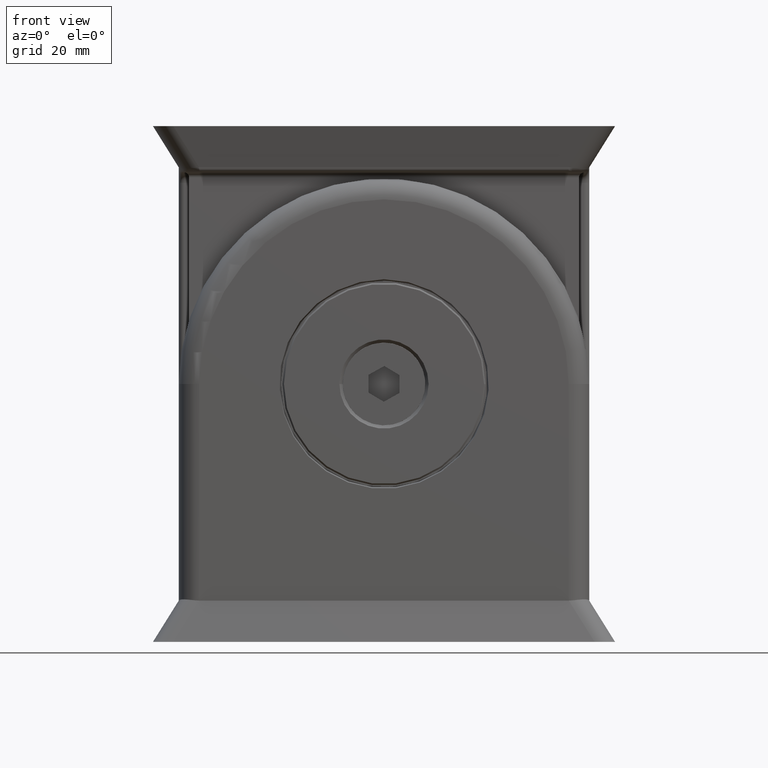
[diagram: clean part render]
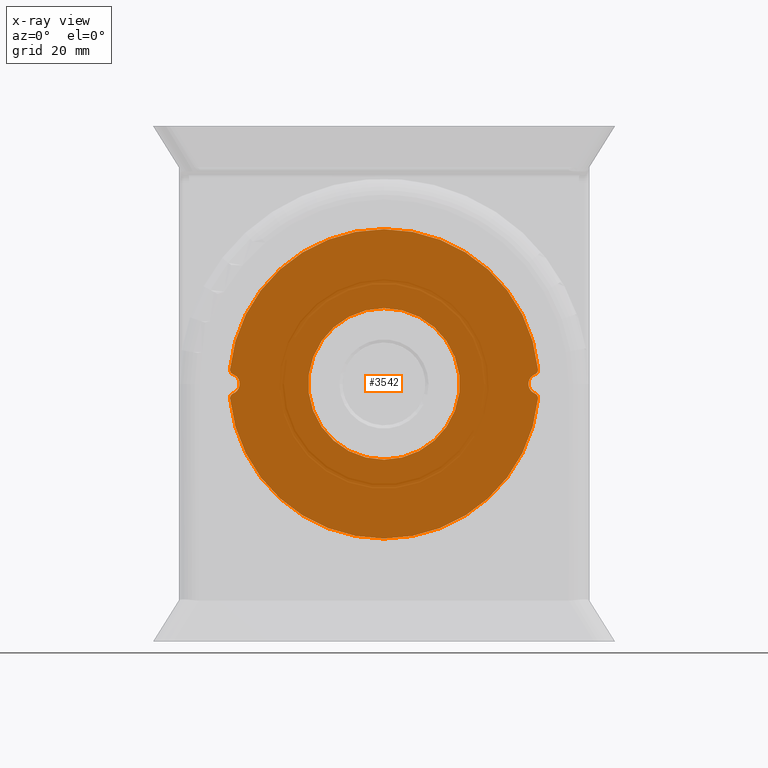
[diagram: x-ray — body ghosted, one internal face saturated and labeled with its STEP entity id]
A machine part, front view, then the same camera in x-ray: the body is ghosted and one INTERNAL B-rep face — a face not visible from any outside direction — is saturated and labeled: STEP entity #3542.
In plain terms, the highlighted planar face has unit normal (-0, -1, -0).
Its self-contained STEP definition (entity closure, byte-faithful):
#124=FACE_BOUND('',#1182,.T.);
#181=PLANE('',#3992);
#949=FACE_OUTER_BOUND('',#1181,.T.);
#1181=EDGE_LOOP('',(#2990,#2991,#2992,#2993,#2994,#2995,#2996,#2997));
#1182=EDGE_LOOP('',(#2998));
#1295=CIRCLE('',#3746,14.6913486315578);
#1314=CIRCLE('',#3776,30.);
#1391=CIRCLE('',#3979,2.);
#1392=CIRCLE('',#3981,1.);
#1393=CIRCLE('',#3983,1.);
#1394=CIRCLE('',#3985,2.);
#1395=CIRCLE('',#3987,1.);
#1396=CIRCLE('',#3989,30.);
#1397=CIRCLE('',#3991,1.);
#1504=VERTEX_POINT('',#6799);
#1529=VERTEX_POINT('',#7229);
#1530=VERTEX_POINT('',#7231);
#1695=VERTEX_POINT('',#10240);
#1696=VERTEX_POINT('',#10242);
#1697=VERTEX_POINT('',#10248);
#1698=VERTEX_POINT('',#10252);
#1699=VERTEX_POINT('',#10256);
#1700=VERTEX_POINT('',#10260);
#1833=EDGE_CURVE('',#1504,#1504,#1295,.T.);
#1868=EDGE_CURVE('',#1529,#1530,#1314,.T.);
#2143=EDGE_CURVE('',#1696,#1695,#1391,.T.);
#2145=EDGE_CURVE('',#1530,#1695,#1392,.T.);
#2147=EDGE_CURVE('',#1697,#1529,#1393,.T.);
#2149=EDGE_CURVE('',#1697,#1698,#1394,.T.);
#2151=EDGE_CURVE('',#1699,#1698,#1395,.T.);
#2153=EDGE_CURVE('',#1700,#1699,#1396,.T.);
#2154=EDGE_CURVE('',#1696,#1700,#1397,.T.);
#2990=ORIENTED_EDGE('',*,*,#2145,.F.);
#2991=ORIENTED_EDGE('',*,*,#1868,.F.);
#2992=ORIENTED_EDGE('',*,*,#2147,.F.);
#2993=ORIENTED_EDGE('',*,*,#2149,.T.);
#2994=ORIENTED_EDGE('',*,*,#2151,.F.);
#2995=ORIENTED_EDGE('',*,*,#2153,.F.);
#2996=ORIENTED_EDGE('',*,*,#2154,.F.);
#2997=ORIENTED_EDGE('',*,*,#2143,.T.);
#2998=ORIENTED_EDGE('',*,*,#1833,.F.);
#3542=ADVANCED_FACE('',(#949,#124),#181,.F.);
#3746=AXIS2_PLACEMENT_3D('',#6800,#4229,#4230);
#3776=AXIS2_PLACEMENT_3D('',#7232,#4303,#4304);
#3979=AXIS2_PLACEMENT_3D('',#10243,#4843,#4844);
#3981=AXIS2_PLACEMENT_3D('',#10246,#4848,#4849);
#3983=AXIS2_PLACEMENT_3D('',#10250,#4853,#4854);
#3985=AXIS2_PLACEMENT_3D('',#10254,#4858,#4859);
#3987=AXIS2_PLACEMENT_3D('',#10258,#4863,#4864);
#3989=AXIS2_PLACEMENT_3D('',#10262,#4868,#4869);
#3991=AXIS2_PLACEMENT_3D('',#10264,#4872,#4873);
#3992=AXIS2_PLACEMENT_3D('',#10265,#4874,#4875);
#4229=DIRECTION('center_axis',(-1.51139701666372E-16,-1.,-4.6273187967452E-33));
#4230=DIRECTION('ref_axis',(-1.7513716888323E-16,0.,-1.));
#4303=DIRECTION('center_axis',(0.,1.,0.));
#4304=DIRECTION('ref_axis',(0.,0.,-1.));
#4843=DIRECTION('center_axis',(0.,1.,0.));
#4844=DIRECTION('ref_axis',(1.73472347597681E-15,0.,-1.));
#4848=DIRECTION('center_axis',(0.,1.,0.));
#4849=DIRECTION('ref_axis',(0.,0.,1.));
#4853=DIRECTION('center_axis',(0.,1.,0.));
#4854=DIRECTION('ref_axis',(-3.46944695195361E-15,0.,-1.));
#4858=DIRECTION('center_axis',(0.,1.,0.));
#4859=DIRECTION('ref_axis',(0.,0.,-1.));
#4863=DIRECTION('center_axis',(0.,1.,0.));
#4864=DIRECTION('ref_axis',(0.,0.,1.));
#4868=DIRECTION('center_axis',(0.,1.,0.));
#4869=DIRECTION('ref_axis',(0.,0.,-1.));
#4872=DIRECTION('center_axis',(0.,1.,0.));
#4873=DIRECTION('ref_axis',(0.,0.,-1.));
#4874=DIRECTION('center_axis',(0.,1.,0.));
#4875=DIRECTION('ref_axis',(0.,0.,1.));
#6799=CARTESIAN_POINT('',(-2.17831857509323E-14,-14.4,-55.6913486315579));
#6800=CARTESIAN_POINT('Origin',(9.4524768375368E-15,-14.4,-41.));
#7229=CARTESIAN_POINT('',(29.8620689655173,-14.4,-43.8734712628965));
#7231=CARTESIAN_POINT('',(-29.8620689655172,-14.4,-43.8734712628965));
#7232=CARTESIAN_POINT('Origin',(5.02088605067175E-15,-14.4,-41.));
#10240=CARTESIAN_POINT('',(-29.2444444444444,-14.4,-42.8517925916444));
#10242=CARTESIAN_POINT('',(-29.2444444444444,-14.4,-39.1482074083556));
#10243=CARTESIAN_POINT('Origin',(-30.,-14.4,-41.));
#10246=CARTESIAN_POINT('Origin',(-28.8666666666667,-14.4,-43.7776888874666));
#10248=CARTESIAN_POINT('',(29.2444444444445,-14.4,-42.8517925916444));
#10250=CARTESIAN_POINT('Origin',(28.8666666666667,-14.4,-43.7776888874666));
#10252=CARTESIAN_POINT('',(29.2444444444445,-14.4,-39.1482074083556));
#10254=CARTESIAN_POINT('Origin',(30.,-14.4,-41.));
#10256=CARTESIAN_POINT('',(29.8620689655172,-14.4,-38.1265287371035));
#10258=CARTESIAN_POINT('Origin',(28.8666666666667,-14.4,-38.2223111125334));
#10260=CARTESIAN_POINT('',(-29.8620689655172,-14.4,-38.1265287371035));
#10262=CARTESIAN_POINT('Origin',(5.02088605067175E-15,-14.4,-41.));
#10264=CARTESIAN_POINT('Origin',(-28.8666666666667,-14.4,-38.2223111125334));
#10265=CARTESIAN_POINT('Origin',(39.8,-14.4,-8.81716574752111E-16));